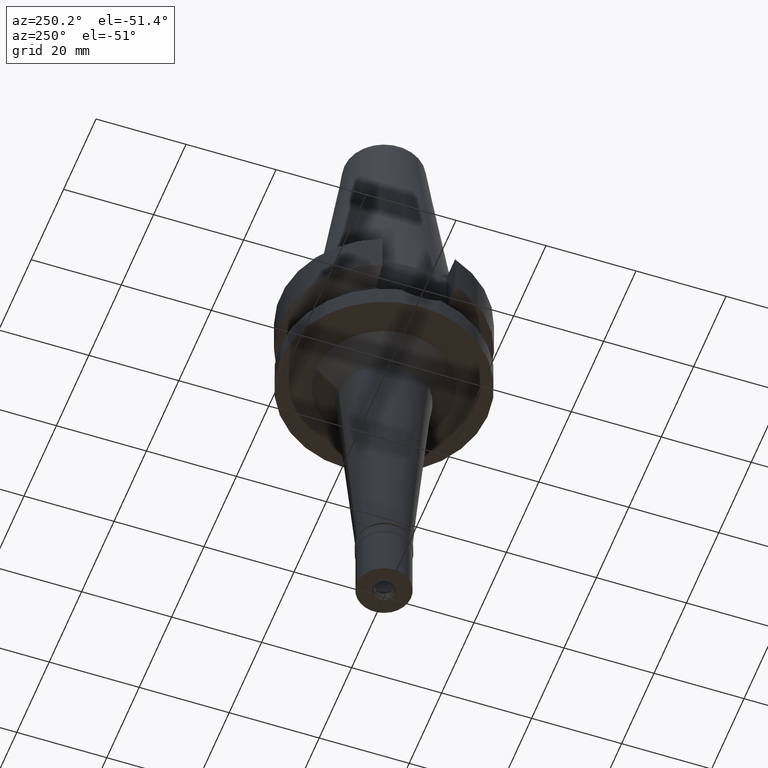
[diagram: clean part render]
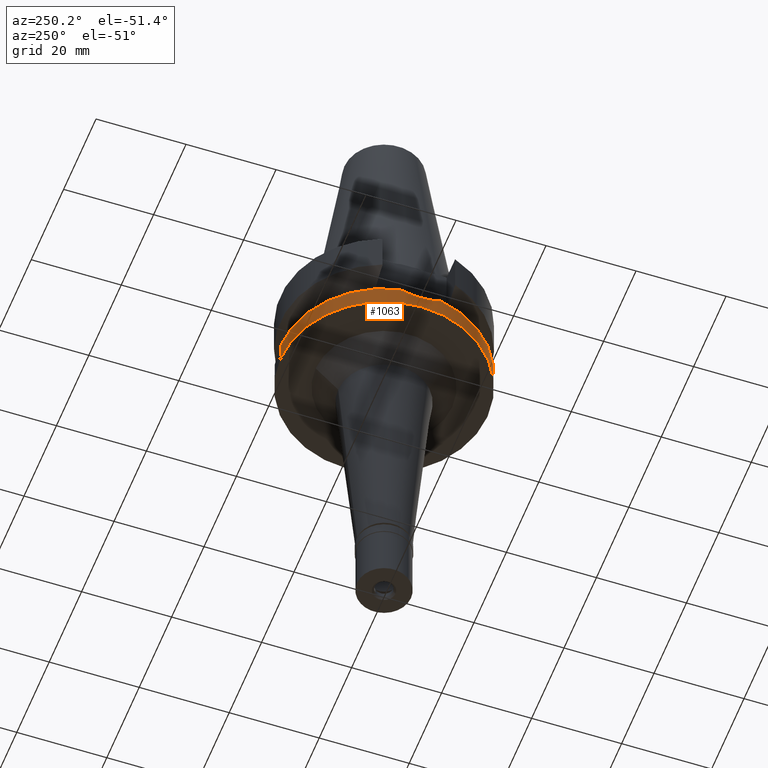
[diagram: same view with one face highlighted and labeled with its STEP entity id]
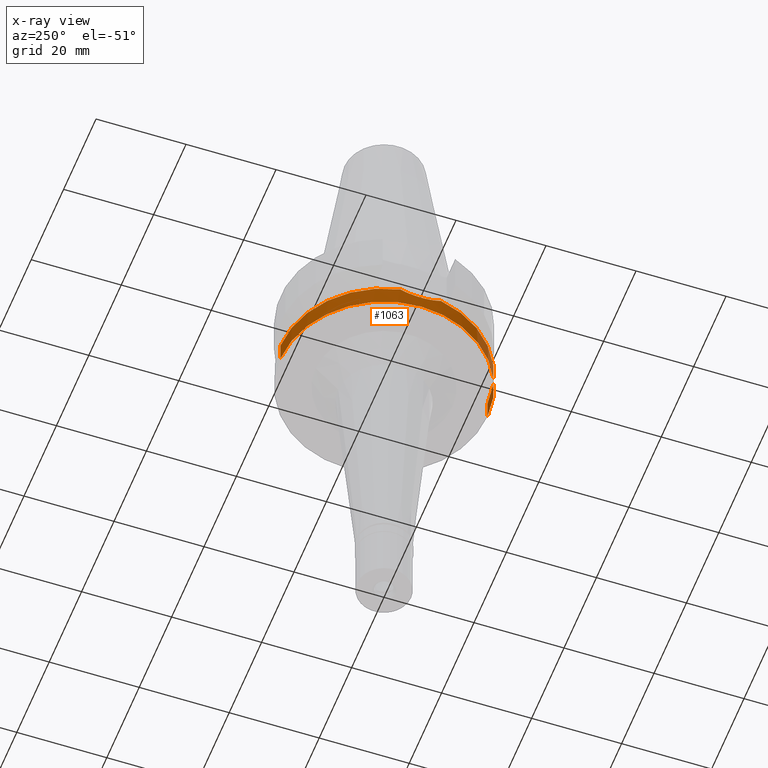
[diagram: x-ray of the same camera — body ghosted, the highlighted face saturated]
A machine part, auxiliary view. The second image highlights one B-rep face of the part: STEP entity #1063.
The next image is the same camera in x-ray: the body ghosted, the highlighted face saturated — about 0% of this face is hidden behind the body in this view.
In plain terms, the highlighted cylindrical surface (partial cylindrical patch) has radius 23 mm, axis along (0, 0, -1).
Its self-contained STEP definition (entity closure, byte-faithful):
#76 = EDGE_CURVE ( 'NONE', #595, #2656, #1881, .T. ) ;
#115 = CARTESIAN_POINT ( 'NONE',  ( -22.87861630501289056, 2.361023336874536582, -18.64601014832494386 ) ) ;
#119 = CYLINDRICAL_SURFACE ( 'NONE', #2083, 23.00000000000000000 ) ;
#127 = CARTESIAN_POINT ( 'NONE',  ( 0.0000000000000000000, -23.00000000000000000, -17.63279163029000074 ) ) ;
#252 = DIRECTION ( 'NONE',  ( 0.0000000000000000000, 0.0000000000000000000, -1.000000000000000000 ) ) ;
#359 = ORIENTED_EDGE ( 'NONE', *, *, #1786, .T. ) ;
#399 = CARTESIAN_POINT ( 'NONE',  ( -22.70368143405463712, -3.755165184309715354, -18.12500238351409365 ) ) ;
#442 = DIRECTION ( 'NONE',  ( 0.0000000000000000000, 1.000000000000000000, 0.0000000000000000000 ) ) ;
#468 = CARTESIAN_POINT ( 'NONE',  ( 0.0000000000000000000, 23.00000000000000000, -17.63279163029000074 ) ) ;
#588 = CARTESIAN_POINT ( 'NONE',  ( -22.55786346208000026, 4.488072640470000430, -17.63279163029000074 ) ) ;
#595 = VERTEX_POINT ( 'NONE', #127 ) ;
#609 = CARTESIAN_POINT ( 'NONE',  ( -22.88991157456211312, -2.248789769912847181, -18.67955884515437859 ) ) ;
#627 = CARTESIAN_POINT ( 'NONE',  ( -22.89699611234823351, -2.176205502275773362, -18.70055256334251581 ) ) ;
#657 = VERTEX_POINT ( 'NONE', #588 ) ;
#678 = LINE ( 'NONE', #468, #978 ) ;
#709 = CARTESIAN_POINT ( 'NONE',  ( 0.0000000000000000000, 1.899672114836999856E-14, -22.00000000000000000 ) ) ;
#720 = CARTESIAN_POINT ( 'NONE',  ( 0.0000000000000000000, 23.00000000000000000, -17.63279163029000074 ) ) ;
#786 = CIRCLE ( 'NONE', #2740, 23.00000000000000000 ) ;
#807 = CARTESIAN_POINT ( 'NONE',  ( -23.00029662912030659, 0.3642194550226892646, -19.00087563674758684 ) ) ;
#825 = CARTESIAN_POINT ( 'NONE',  ( -22.87414327109160084, 2.403886245644363040, -18.63272961377585446 ) ) ;
#837 = CARTESIAN_POINT ( 'NONE',  ( -22.69567515072291641, 3.744427589460684214, -18.08743531928252324 ) ) ;
#857 = CARTESIAN_POINT ( 'NONE',  ( -22.99070996731581928, 0.7559783034967044735, -18.97414752054853437 ) ) ;
#872 = CARTESIAN_POINT ( 'NONE',  ( -22.92481566647014546, -1.860812591562293283, -18.78261217928888627 ) ) ;
#902 = DIRECTION ( 'NONE',  ( 0.0000000000000000000, 0.0000000000000000000, 1.000000000000000000 ) ) ;
#914 = CARTESIAN_POINT ( 'NONE',  ( 0.0000000000000000000, 1.022848384030000006E-14, -17.63279163029000074 ) ) ;
#978 = VECTOR ( 'NONE', #1141, 1000.000000000000000 ) ;
#1063 = ADVANCED_FACE ( 'NONE', ( #2174 ), #119, .T. ) ;
#1141 = DIRECTION ( 'NONE',  ( 0.0000000000000000000, -2.603192430893000129E-14, -1.000000000000000000 ) ) ;
#1145 = DIRECTION ( 'NONE',  ( 0.0000000000000000000, 0.0000000000000000000, -1.000000000000000000 ) ) ;
#1255 = CARTESIAN_POINT ( 'NONE',  ( -22.80159199133886361, 3.017607167158247172, -18.41541534241778777 ) ) ;
#1267 = ORIENTED_EDGE ( 'NONE', *, *, #1626, .F. ) ;
#1288 = CARTESIAN_POINT ( 'NONE',  ( -22.92236411249715999, 1.929440396810534697, -18.77583475492947329 ) ) ;
#1302 = CARTESIAN_POINT ( 'NONE',  ( -22.99968787905705625, -0.4019489960476652635, -18.99908015454991528 ) ) ;
#1319 = CARTESIAN_POINT ( 'NONE',  ( -22.55786346208000026, -4.488072640470000430, -17.63279163029000074 ) ) ;
#1337 = VECTOR ( 'NONE', #1910, 1000.000000000000000 ) ;
#1350 = EDGE_CURVE ( 'NONE', #1651, #2656, #1497, .T. ) ;
#1371 = ORIENTED_EDGE ( 'NONE', *, *, #1350, .T. ) ;
#1378 = EDGE_CURVE ( 'NONE', #657, #2048, #1647, .T. ) ;
#1403 = AXIS2_PLACEMENT_3D ( 'NONE', #709, #902, #442 ) ;
#1497 = CIRCLE ( 'NONE', #1403, 23.00000000000000000 ) ;
#1506 = CARTESIAN_POINT ( 'NONE',  ( -22.63167620609790376, 4.117076461338487370, -17.88194765570421652 ) ) ;
#1522 = CARTESIAN_POINT ( 'NONE',  ( -22.55786346208000026, -4.488072640470000430, -17.63279163029000074 ) ) ;
#1538 = CARTESIAN_POINT ( 'NONE',  ( -22.88248210309766151, -2.323175083986475986, -18.65751861242972609 ) ) ;
#1626 = EDGE_CURVE ( 'NONE', #657, #1703, #2908, .T. ) ;
#1647 = CIRCLE ( 'NONE', #2465, 23.00000000000001066 ) ;
#1651 = VERTEX_POINT ( 'NONE', #2681 ) ;
#1703 = VERTEX_POINT ( 'NONE', #1522 ) ;
#1734 = CARTESIAN_POINT ( 'NONE',  ( -22.88511174644823143, -2.297151529141161497, -18.66532437569111735 ) ) ;
#1748 = CARTESIAN_POINT ( 'NONE',  ( -22.95174273014592714, 1.537723654376541571, -18.86162768269929657 ) ) ;
#1767 = CARTESIAN_POINT ( 'NONE',  ( -22.94716318960935553, -1.569022884813492169, -18.84812733470266721 ) ) ;
#1784 = DIRECTION ( 'NONE',  ( 0.0000000000000000000, 0.0000000000000000000, -1.000000000000000000 ) ) ;
#1786 = EDGE_CURVE ( 'NONE', #595, #1703, #786, .T. ) ;
#1844 = CARTESIAN_POINT ( 'NONE',  ( 0.0000000000000000000, -23.00000000000000000, -22.00000000000000000 ) ) ;
#1851 = DIRECTION ( 'NONE',  ( -0.9807766722643714852, 0.1951335930638943839, 0.0000000000000000000 ) ) ;
#1881 = LINE ( 'NONE', #2793, #1337 ) ;
#1910 = DIRECTION ( 'NONE',  ( 0.0000000000000000000, 2.277793377031000010E-14, -1.000000000000000000 ) ) ;
#1941 = CARTESIAN_POINT ( 'NONE',  ( -22.98955272986298581, -0.7902386440411628410, -18.97077812708296563 ) ) ;
#1974 = CARTESIAN_POINT ( 'NONE',  ( -22.85058971171486064, 2.619934289335827504, -18.56269662184716651 ) ) ;
#2022 = CARTESIAN_POINT ( 'NONE',  ( 0.0000000000000000000, 1.899672114836999856E-14, 55.12000000000000455 ) ) ;
#2048 = VERTEX_POINT ( 'NONE', #720 ) ;
#2083 = AXIS2_PLACEMENT_3D ( 'NONE', #2022, #1784, #2627 ) ;
#2090 = ORIENTED_EDGE ( 'NONE', *, *, #76, .F. ) ;
#2170 = CARTESIAN_POINT ( 'NONE',  ( -22.55786346208000026, 4.488072640470000430, -17.63279163029000074 ) ) ;
#2174 = FACE_OUTER_BOUND ( 'NONE', #2478, .T. ) ;
#2318 = EDGE_CURVE ( 'NONE', #2048, #1651, #678, .T. ) ;
#2370 = ORIENTED_EDGE ( 'NONE', *, *, #2318, .T. ) ;
#2391 = ORIENTED_EDGE ( 'NONE', *, *, #1378, .T. ) ;
#2415 = CARTESIAN_POINT ( 'NONE',  ( -22.86731871474800215, 2.468351266484468454, -18.61246133175335871 ) ) ;
#2460 = CARTESIAN_POINT ( 'NONE',  ( -22.81116729614178240, -3.018879001739452228, -18.44574256111641830 ) ) ;
#2465 = AXIS2_PLACEMENT_3D ( 'NONE', #914, #1145, #1851 ) ;
#2478 = EDGE_LOOP ( 'NONE', ( #2391, #2370, #1371, #2090, #359, #1267 ) ) ;
#2485 = DIRECTION ( 'NONE',  ( 0.0000000000000000000, -1.000000000000000000, 0.0000000000000000000 ) ) ;
#2627 = DIRECTION ( 'NONE',  ( 0.0000000000000000000, -1.000000000000000000, 0.0000000000000000000 ) ) ;
#2653 = CARTESIAN_POINT ( 'NONE',  ( -22.95960384482821226, -1.374149555388528343, -18.88428810411070202 ) ) ;
#2656 = VERTEX_POINT ( 'NONE', #1844 ) ;
#2669 = CARTESIAN_POINT ( 'NONE',  ( -22.91272026982279542, -2.006576538337907500, -18.74703710260765277 ) ) ;
#2681 = CARTESIAN_POINT ( 'NONE',  ( 0.0000000000000000000, 23.00000000000000000, -22.00000000000000000 ) ) ;
#2714 = CARTESIAN_POINT ( 'NONE',  ( 0.0000000000000000000, 1.022848384030000006E-14, -17.63279163029000074 ) ) ;
#2740 = AXIS2_PLACEMENT_3D ( 'NONE', #2714, #252, #2485 ) ;
#2793 = CARTESIAN_POINT ( 'NONE',  ( 0.0000000000000000000, -23.00000000000000000, -17.63279163029000074 ) ) ;
#2847 = CARTESIAN_POINT ( 'NONE',  ( -22.88063589474004189, 2.341420696178729610, -18.65200554884941653 ) ) ;
#2892 = CARTESIAN_POINT ( 'NONE',  ( -22.77695286857104406, 3.197805389034071855, -18.34032109730549465 ) ) ;
#2906 = CARTESIAN_POINT ( 'NONE',  ( -22.83487050071825308, 2.751754037761912297, -18.51566715684637998 ) ) ;
#2908 = B_SPLINE_CURVE_WITH_KNOTS ( 'NONE', 3,
 ( #2170, #1506, #837, #2892, #1255, #2906, #1974, #2415, #825, #115, #2847, #1288, #1748, #857, #807, #1302, #1941, #2653, #1767, #872, #2669, #627, #609, #1734, #1538, #2460, #399, #1319 ),
 .UNSPECIFIED., .F., .F.,
 ( 4, 2, 2, 1, 1, 2, 2, 2, 2, 2, 2, 1, 1, 2, 2, 4 ),
 ( 0.0000000000000000000, 0.1249999999999952816, 0.1874999999999930611, 0.2187499999999922839, 0.2343749999999921452, 0.2421874999999919786, 0.2499999999999917843, 0.3749999999999920619, 0.4999999999999923395, 0.6249999999999925615, 0.6874999999999927836, 0.7187499999999931166, 0.7343749999999932276, 0.7421874999999933387, 0.7499999999999933387, 1.000000000000000000 ),
 .UNSPECIFIED. ) ;